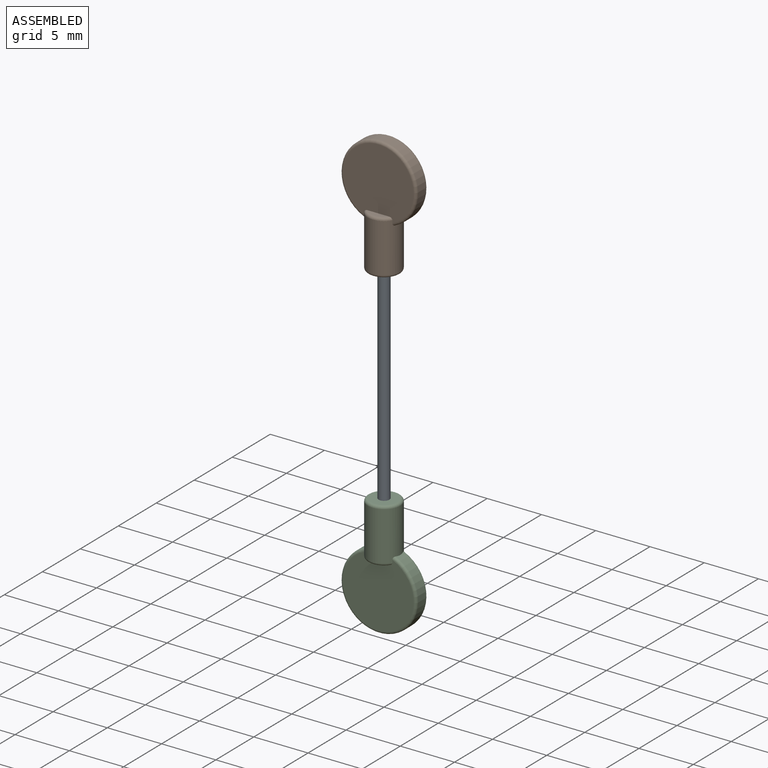
[diagram: assembled view]
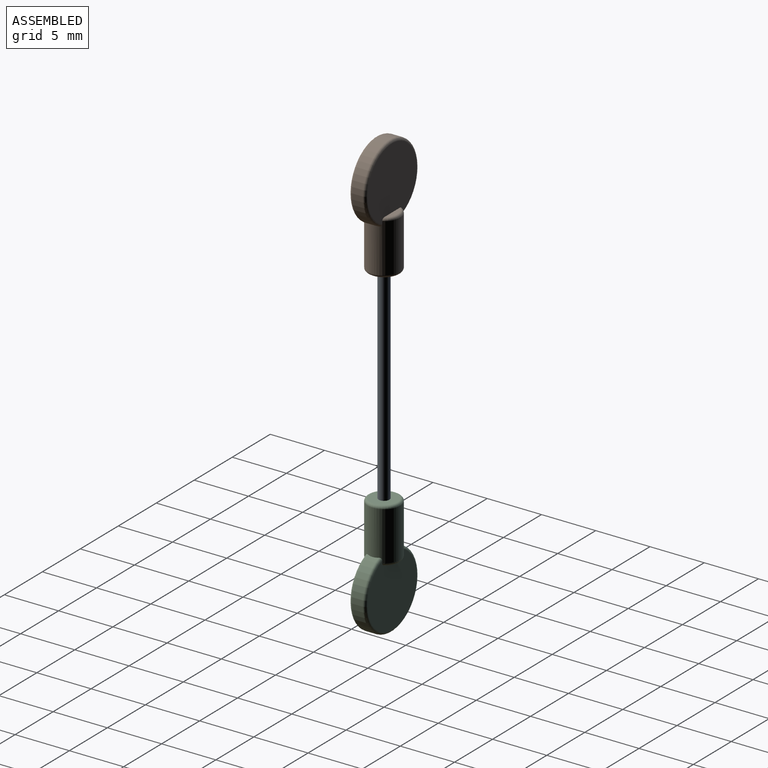
[diagram: assembled view, second angle]
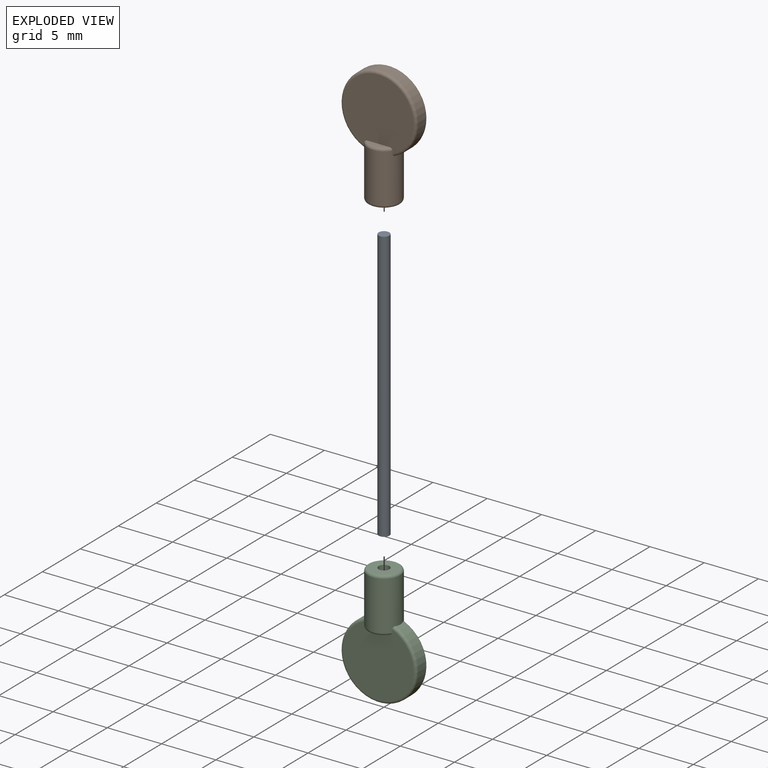
[diagram: exploded view]
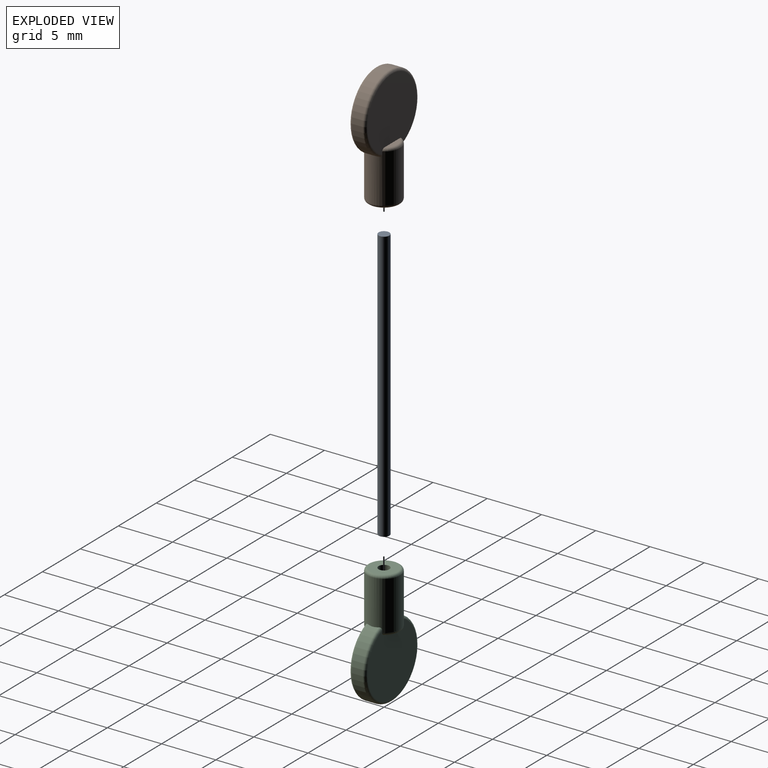
[diagram: exploded view, second angle]
ASSEMBLY  parts=3 mates=2
PART A: 3 faces, bbox 1x1x25 mm
  f0: cylinder r=0.5mm len=25mm, axis (0,0,-1), area 78.5mm2, adj f1,f2
  f1: plane 1x1mm, normal (0,0,1), area 0.8mm2, adj f0
  f2: plane 1x1mm, normal (0,0,-1), area 0.8mm2, adj f0
PART B: 14 faces, bbox 7.6x3.2x11.3 mm
  f0: cylinder r=3.5mm len=7mm, axis (0,1,0), area 19mm2, adj f4,f10,f11
  f1: plane 6.5x6.23mm, normal (0,-1,0), area 31.5mm2, adj f4,f6,f7,f11
  f2: plane 6.5x6.23mm, normal (0,1,0), area 31.5mm2, adj f3,f4,f8,f10
  f3: plane 2x0.5mm, normal (0,0,-1), area 0.7mm2, adj f2,f8
  f4: cylinder r=1.5mm len=4.5mm, axis (0,0,-1), area 41.1mm2, adj f0,f1,f2,f7,f8,f9,f10,f11
  f5: plane 2.5x2.5mm, normal (0,0,1), area 4.1mm2, adj f9,f12
  f6: plane 2x0.5mm, normal (0,0,-1), area 0.7mm2, adj f1,f7
  f7: torus R=1.25mm, axis (0,0,1), area 1.1mm2, adj f1,f4,f6
  f8: torus R=1.25mm, axis (0,0,1), area 1.1mm2, adj f2,f3,f4
  f9: torus R=1.25mm, axis (0,0,1), area 3.5mm2, adj f4,f5
  f10: torus R=3.25mm, axis (0,-1,0), area 7.3mm2, adj f0,f2,f4
  f11: torus R=3.25mm, axis (0,-1,0), area 7.3mm2, adj f0,f1,f4
  f12: cylinder r=0.5mm len=3mm, axis (0,0,1), area 9.4mm2, adj f5,f13
  f13: plane 1x1mm, normal (0,0,1), area 0.8mm2, adj f12
PART C: same geometry as B
PLACE A t=(12.75,-19.67,-10.75)mm
PLACE B rot(axis=(1,0,0),180deg) t=(12.75,19.67,35.75)mm
PLACE C t=(12.75,-19.67,-10.75)mm
MATE fastened A.f0 <-> B.f4  axis (0,0,-1) through (0,0,25)mm
MATE fastened C.f4 <-> A.f0  axis (0,0,1) through (0,0,0)mm
